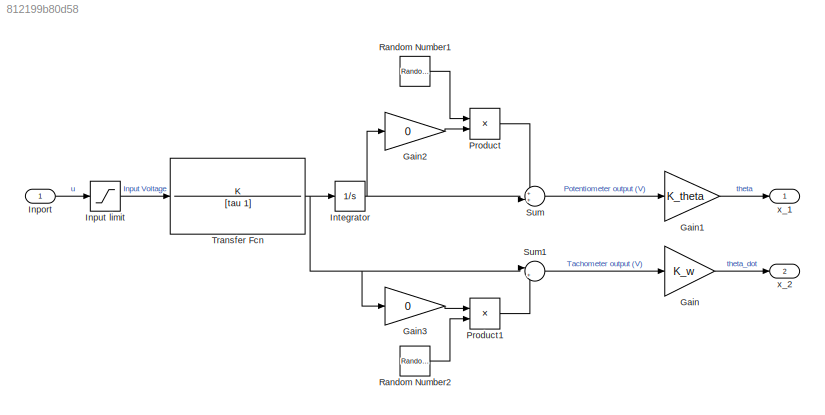
MODEL slx_812199b80d58
KIND model
CONFIG AbsTol = auto
CONFIG EnableMultiTasking = off
CONFIG FixedStep = auto
CONFIG MaxStep = auto
CONFIG MinStep = auto
CONFIG RelTol = 1e-3
CONFIG SampleTimeConstraint = Unconstrained
CONFIG SolverName = VariableStepAuto
CONFIG StartTime = 0.0
CONFIG StopTime = 10.0
BLOCK [Gain] Gain
  Gain = K_w
BLOCK [Gain] Gain1
  Gain = K_theta
BLOCK [Gain] Gain2
  Gain = 0
BLOCK [Gain] Gain3
  Gain = 0
BLOCK [Inport] Inport
BLOCK [Saturate] Input limit
  LowerLimit = -5
  UpperLimit = 5
BLOCK [Integrator] Integrator
BLOCK [Product] Product
BLOCK [Product] Product1
BLOCK [RandomNumber] Random Number1
  SampleTime = 0.1
BLOCK [RandomNumber] Random Number2
  SampleTime = 0.1
BLOCK [Sum] Sum
  Inputs = ++|
BLOCK [Sum] Sum1
  Inputs = |++
BLOCK [TransferFcn] Transfer Fcn
  Denominator = [tau 1]
  Numerator = K
BLOCK [Outport] x_1
BLOCK [Outport] x_2
  Port = 2
LINE Gain1:1 -> x_1:1
LINE Gain2:1 -> Product:2
LINE Gain3:1 -> Product1:1
LINE Gain:1 -> x_2:1
LINE Inport:1 -> Input limit:1
LINE Input limit:1 -> Transfer Fcn:1
NET Integrator:1 -> Gain2:1, Sum:2
LINE Product1:1 -> Sum1:2
LINE Product:1 -> Sum:1
LINE Random Number1:1 -> Product:1
LINE Random Number2:1 -> Product1:2
LINE Sum1:1 -> Gain:1
LINE Sum:1 -> Gain1:1
NET Transfer Fcn:1 -> Gain3:1, Integrator:1, Sum1:1
note: NET lines group one-source signal fan-out (src -> all destinations, sorted); 1:1 wires keep LINE
